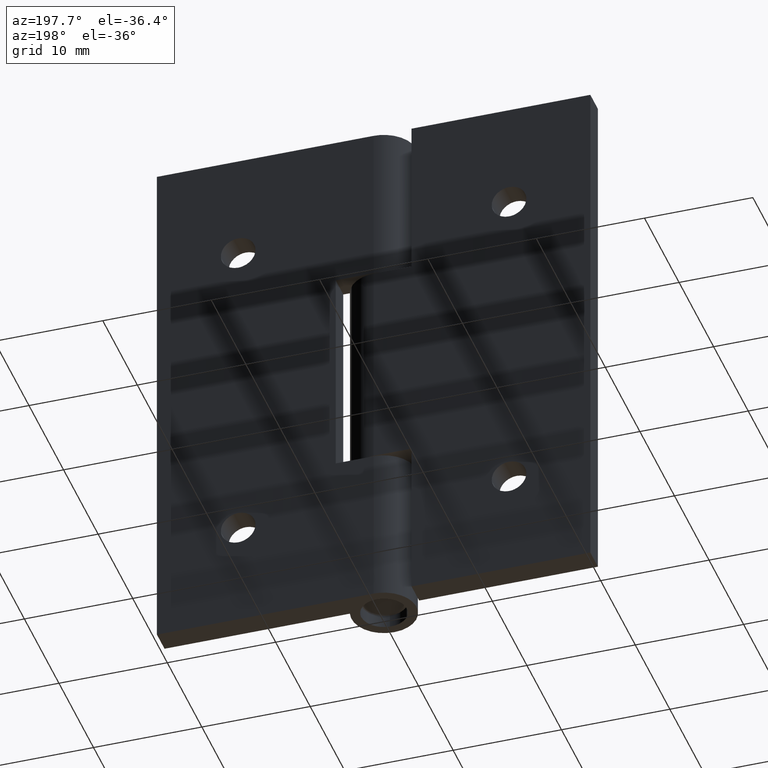
[diagram: clean part render]
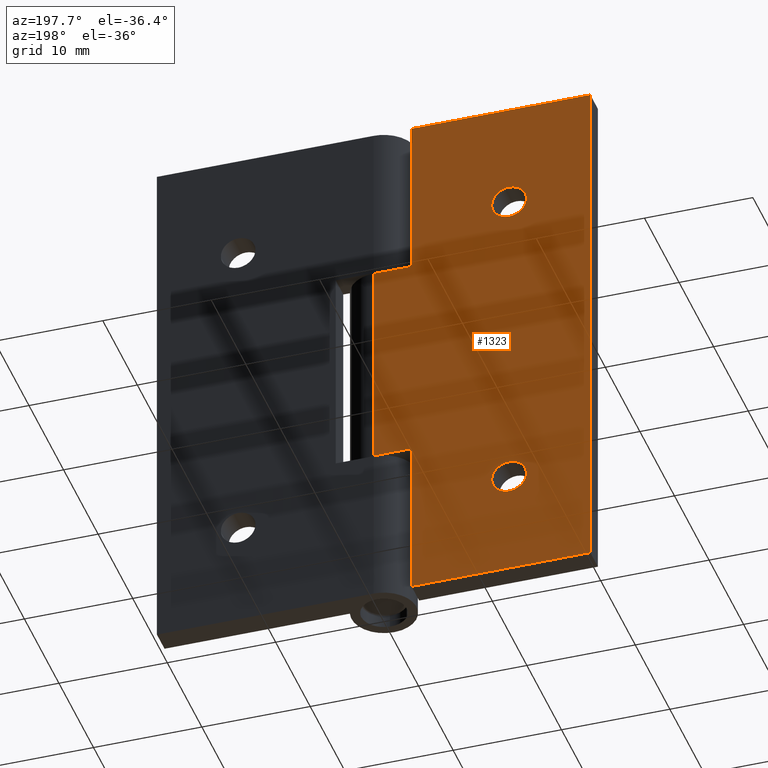
[diagram: same view with one face highlighted and labeled with its STEP entity id]
A machine part, auxiliary view. The second image highlights one B-rep face of the part: STEP entity #1323.
In plain terms, the highlighted face is a freeform B-spline surface patch.
Its self-contained STEP definition (entity closure, byte-faithful):
#658=CARTESIAN_POINT('',(-14.095067733957350,3.0,40.125534553363543));
#659=VERTEX_POINT('',#658);
#665=CARTESIAN_POINT('',(-12.500000000000000,3.0,41.600000000000001));
#666=VERTEX_POINT('',#665);
#667=CARTESIAN_POINT('',(-12.500000000000000,3.0,41.600000000000001));
#668=CARTESIAN_POINT('',(-13.979024786282977,2.999999999999999,41.600000000000009));
#669=CARTESIAN_POINT('',(-14.095067733957347,3.000000000000000,40.125534553363536));
#677=(BOUNDED_CURVE()B_SPLINE_CURVE(2,(#667,#668,#669),.UNSPECIFIED.,.F.,.U.)B_SPLINE_CURVE_WITH_KNOTS((3,3),(0.0,0.236331300589997),.UNSPECIFIED.)CURVE()GEOMETRIC_REPRESENTATION_ITEM()RATIONAL_B_SPLINE_CURVE((1.0,0.723120658655304,0.969723356082559))REPRESENTATION_ITEM(''));
#678=EDGE_CURVE('',#666,#659,#677,.T.);
#680=CARTESIAN_POINT('',(-10.904932266042660,3.0,39.874465446636457));
#681=VERTEX_POINT('',#680);
#682=CARTESIAN_POINT('',(-10.904932266042659,3.000000000000000,39.874465446636457));
#683=CARTESIAN_POINT('',(-10.899999999999997,3.000000000000000,39.937135828587827));
#684=CARTESIAN_POINT('',(-10.900000000000000,3.0,40.0));
#685=CARTESIAN_POINT('',(-10.900000000000000,3.0,41.600000000000001));
#686=CARTESIAN_POINT('',(-12.500000000000000,3.0,41.600000000000001));
#694=(BOUNDED_CURVE()B_SPLINE_CURVE(2,(#682,#683,#684,#685,#686),.UNSPECIFIED.,.F.,.U.)B_SPLINE_CURVE_WITH_KNOTS((3,2,3),(0.736331300589998,0.750000000000000,1.0),.UNSPECIFIED.)CURVE()GEOMETRIC_REPRESENTATION_ITEM()RATIONAL_B_SPLINE_CURVE((0.969723356082561,0.983986122531244,1.0,0.707106781186548,1.0))REPRESENTATION_ITEM(''));
#695=EDGE_CURVE('',#681,#666,#694,.T.);
#771=CARTESIAN_POINT('',(-12.500000000000000,3.0,38.400000000000013));
#772=VERTEX_POINT('',#771);
#773=CARTESIAN_POINT('',(-12.500000000000000,3.0,38.400000000000013));
#774=CARTESIAN_POINT('',(-11.020975213717012,3.000000000000000,38.400000000000006));
#775=CARTESIAN_POINT('',(-10.904932266042653,3.000000000000000,39.874465446636464));
#783=(BOUNDED_CURVE()B_SPLINE_CURVE(2,(#773,#774,#775),.UNSPECIFIED.,.F.,.U.)B_SPLINE_CURVE_WITH_KNOTS((3,3),(0.500000000000000,0.736331300589998),.UNSPECIFIED.)CURVE()GEOMETRIC_REPRESENTATION_ITEM()RATIONAL_B_SPLINE_CURVE((1.0,0.723120658655304,0.969723356082560))REPRESENTATION_ITEM(''));
#784=EDGE_CURVE('',#772,#681,#783,.T.);
#786=CARTESIAN_POINT('',(-14.095067733957347,3.000000000000000,40.125534553363536));
#787=CARTESIAN_POINT('',(-14.099999999999998,3.000000000000000,40.062864171412173));
#788=CARTESIAN_POINT('',(-14.100000000000000,3.0,40.0));
#789=CARTESIAN_POINT('',(-14.100000000000001,3.0,38.400000000000006));
#790=CARTESIAN_POINT('',(-12.500000000000000,3.0,38.400000000000013));
#798=(BOUNDED_CURVE()B_SPLINE_CURVE(2,(#786,#787,#788,#789,#790),.UNSPECIFIED.,.F.,.U.)B_SPLINE_CURVE_WITH_KNOTS((3,2,3),(0.236331300589998,0.250000000000000,0.500000000000000),.UNSPECIFIED.)CURVE()GEOMETRIC_REPRESENTATION_ITEM()RATIONAL_B_SPLINE_CURVE((0.969723356082559,0.983986122531243,1.0,0.707106781186548,1.0))REPRESENTATION_ITEM(''));
#799=EDGE_CURVE('',#659,#772,#798,.T.);
#840=CARTESIAN_POINT('',(-14.095067733957350,3.0,10.125534553363529));
#841=VERTEX_POINT('',#840);
#847=CARTESIAN_POINT('',(-12.500000000000000,3.0,11.600000000000000));
#848=VERTEX_POINT('',#847);
#849=CARTESIAN_POINT('',(-12.500000000000000,3.0,11.600000000000000));
#850=CARTESIAN_POINT('',(-13.979024786282990,3.000000000000001,11.600000000000000));
#851=CARTESIAN_POINT('',(-14.095067733957347,3.000000000000000,10.125534553363529));
#859=(BOUNDED_CURVE()B_SPLINE_CURVE(2,(#849,#850,#851),.UNSPECIFIED.,.F.,.U.)B_SPLINE_CURVE_WITH_KNOTS((3,3),(0.0,0.236331300589998),.UNSPECIFIED.)CURVE()GEOMETRIC_REPRESENTATION_ITEM()RATIONAL_B_SPLINE_CURVE((1.0,0.723120658655304,0.969723356082560))REPRESENTATION_ITEM(''));
#860=EDGE_CURVE('',#848,#841,#859,.T.);
#862=CARTESIAN_POINT('',(-10.904932266042660,3.0,9.874465446636471));
#863=VERTEX_POINT('',#862);
#864=CARTESIAN_POINT('',(-10.904932266042660,3.000000000000000,9.874465446636471));
#865=CARTESIAN_POINT('',(-10.899999999999999,3.0,9.937135828587829));
#866=CARTESIAN_POINT('',(-10.900000000000000,3.0,10.0));
#867=CARTESIAN_POINT('',(-10.900000000000000,3.0,11.600000000000001));
#868=CARTESIAN_POINT('',(-12.500000000000000,3.0,11.600000000000000));
#876=(BOUNDED_CURVE()B_SPLINE_CURVE(2,(#864,#865,#866,#867,#868),.UNSPECIFIED.,.F.,.U.)B_SPLINE_CURVE_WITH_KNOTS((3,2,3),(0.736331300589998,0.750000000000000,1.0),.UNSPECIFIED.)CURVE()GEOMETRIC_REPRESENTATION_ITEM()RATIONAL_B_SPLINE_CURVE((0.969723356082560,0.983986122531244,1.0,0.707106781186548,1.0))REPRESENTATION_ITEM(''));
#877=EDGE_CURVE('',#863,#848,#876,.T.);
#953=CARTESIAN_POINT('',(-12.500000000000000,3.0,8.400000000000000));
#954=VERTEX_POINT('',#953);
#955=CARTESIAN_POINT('',(-12.500000000000000,3.0,8.400000000000000));
#956=CARTESIAN_POINT('',(-11.020975213717012,3.000000000000000,8.400000000000000));
#957=CARTESIAN_POINT('',(-10.904932266042653,3.000000000000000,9.874465446636471));
#965=(BOUNDED_CURVE()B_SPLINE_CURVE(2,(#955,#956,#957),.UNSPECIFIED.,.F.,.U.)B_SPLINE_CURVE_WITH_KNOTS((3,3),(0.500000000000000,0.736331300589998),.UNSPECIFIED.)CURVE()GEOMETRIC_REPRESENTATION_ITEM()RATIONAL_B_SPLINE_CURVE((1.0,0.723120658655304,0.969723356082560))REPRESENTATION_ITEM(''));
#966=EDGE_CURVE('',#954,#863,#965,.T.);
#968=CARTESIAN_POINT('',(-14.095067733957347,3.000000000000000,10.125534553363529));
#969=CARTESIAN_POINT('',(-14.099999999999998,3.000000000000000,10.062864171412173));
#970=CARTESIAN_POINT('',(-14.100000000000000,3.0,10.0));
#971=CARTESIAN_POINT('',(-14.100000000000001,3.0,8.400000000000000));
#972=CARTESIAN_POINT('',(-12.500000000000000,3.0,8.400000000000000));
#980=(BOUNDED_CURVE()B_SPLINE_CURVE(2,(#968,#969,#970,#971,#972),.UNSPECIFIED.,.F.,.U.)B_SPLINE_CURVE_WITH_KNOTS((3,2,3),(0.236331300589998,0.250000000000000,0.500000000000000),.UNSPECIFIED.)CURVE()GEOMETRIC_REPRESENTATION_ITEM()RATIONAL_B_SPLINE_CURVE((0.969723356082560,0.983986122531244,1.0,0.707106781186548,1.0))REPRESENTATION_ITEM(''));
#981=EDGE_CURVE('',#841,#954,#980,.T.);
#994=CARTESIAN_POINT('',(-3.500000000000000,3.0,0.0));
#995=VERTEX_POINT('',#994);
#1001=CARTESIAN_POINT('',(-3.500000000000000,3.0,15.050000000000001));
#1002=VERTEX_POINT('',#1001);
#1003=CARTESIAN_POINT('',(-3.500000000000000,3.0,15.050000000000001));
#1004=CARTESIAN_POINT('',(-3.500000000000000,3.0,0.0));
#1005=QUASI_UNIFORM_CURVE('',1,(#1003,#1004),.UNSPECIFIED.,.F.,.U.);
#1006=EDGE_CURVE('',#1002,#995,#1005,.T.);
#1029=CARTESIAN_POINT('',(0.0,3.0,15.050000000000001));
#1030=VERTEX_POINT('',#1029);
#1031=CARTESIAN_POINT('',(0.0,3.0,15.050000000000001));
#1032=CARTESIAN_POINT('',(-3.500000000000000,3.0,15.050000000000001));
#1033=QUASI_UNIFORM_CURVE('',1,(#1031,#1032),.UNSPECIFIED.,.F.,.U.);
#1034=EDGE_CURVE('',#1030,#1002,#1033,.T.);
#1078=CARTESIAN_POINT('',(-3.500000000000000,3.0,34.950000000000003));
#1079=VERTEX_POINT('',#1078);
#1085=CARTESIAN_POINT('',(-3.500000000000000,3.0,50.0));
#1086=VERTEX_POINT('',#1085);
#1087=CARTESIAN_POINT('',(-3.500000000000000,3.0,34.950000000000003));
#1088=CARTESIAN_POINT('',(-3.500000000000000,3.0,50.0));
#1089=QUASI_UNIFORM_CURVE('',1,(#1087,#1088),.UNSPECIFIED.,.F.,.U.);
#1090=EDGE_CURVE('',#1079,#1086,#1089,.T.);
#1114=CARTESIAN_POINT('',(0.0,3.0,34.950000000000003));
#1115=VERTEX_POINT('',#1114);
#1135=CARTESIAN_POINT('',(0.0,3.0,34.950000000000003));
#1136=CARTESIAN_POINT('',(-3.500000000000000,3.0,34.950000000000003));
#1137=QUASI_UNIFORM_CURVE('',1,(#1135,#1136),.UNSPECIFIED.,.F.,.U.);
#1138=EDGE_CURVE('',#1115,#1079,#1137,.T.);
#1168=CARTESIAN_POINT('',(-20.0,3.0,0.0));
#1169=VERTEX_POINT('',#1168);
#1175=CARTESIAN_POINT('',(-3.500000000000000,3.0,0.0));
#1176=CARTESIAN_POINT('',(-20.0,3.0,0.0));
#1177=QUASI_UNIFORM_CURVE('',1,(#1175,#1176),.UNSPECIFIED.,.F.,.U.);
#1178=EDGE_CURVE('',#995,#1169,#1177,.T.);
#1196=CARTESIAN_POINT('',(-20.0,3.0,50.0));
#1197=VERTEX_POINT('',#1196);
#1198=CARTESIAN_POINT('',(-3.500000000000000,3.0,50.0));
#1199=CARTESIAN_POINT('',(-20.0,3.0,50.0));
#1200=QUASI_UNIFORM_CURVE('',1,(#1198,#1199),.UNSPECIFIED.,.F.,.U.);
#1201=EDGE_CURVE('',#1086,#1197,#1200,.T.);
#1239=CARTESIAN_POINT('',(0.0,3.0,34.950000000000003));
#1240=CARTESIAN_POINT('',(0.0,3.0,15.050000000000001));
#1241=QUASI_UNIFORM_CURVE('',1,(#1239,#1240),.UNSPECIFIED.,.F.,.U.);
#1242=EDGE_CURVE('',#1115,#1030,#1241,.T.);
#1260=CARTESIAN_POINT('',(-20.0,3.0,50.0));
#1261=CARTESIAN_POINT('',(-20.0,3.0,0.0));
#1262=QUASI_UNIFORM_CURVE('',1,(#1260,#1261),.UNSPECIFIED.,.F.,.U.);
#1263=EDGE_CURVE('',#1197,#1169,#1262,.T.);
#1296=CARTESIAN_POINT('',(-20.998999961236120,3.0,52.497499903090286));
#1297=CARTESIAN_POINT('',(-20.998999961236120,3.0,-2.497501244194806));
#1298=CARTESIAN_POINT('',(0.999000497677922,3.0,52.497499903090301));
#1299=CARTESIAN_POINT('',(0.999000497677922,3.0,-2.497501244194806));
#1300=B_SPLINE_SURFACE_WITH_KNOTS('',1,1,((#1296,#1298),(#1297,#1299)),.UNSPECIFIED.,.F.,.F.,.U.,(2,2),(2,2),(0.0,54.995001147285109),(0.0,21.998000458914039),.UNSPECIFIED.);
#1301=ORIENTED_EDGE('',*,*,#1242,.T.);
#1302=ORIENTED_EDGE('',*,*,#1034,.T.);
#1303=ORIENTED_EDGE('',*,*,#1006,.T.);
#1304=ORIENTED_EDGE('',*,*,#1178,.T.);
#1305=ORIENTED_EDGE('',*,*,#1263,.F.);
#1306=ORIENTED_EDGE('',*,*,#1201,.F.);
#1307=ORIENTED_EDGE('',*,*,#1090,.F.);
#1308=ORIENTED_EDGE('',*,*,#1138,.F.);
#1309=EDGE_LOOP('',(#1301,#1302,#1303,#1304,#1305,#1306,#1307,#1308));
#1310=FACE_OUTER_BOUND('',#1309,.T.);
#1311=ORIENTED_EDGE('',*,*,#966,.T.);
#1312=ORIENTED_EDGE('',*,*,#877,.T.);
#1313=ORIENTED_EDGE('',*,*,#860,.T.);
#1314=ORIENTED_EDGE('',*,*,#981,.T.);
#1315=EDGE_LOOP('',(#1311,#1312,#1313,#1314));
#1316=FACE_BOUND('',#1315,.T.);
#1317=ORIENTED_EDGE('',*,*,#784,.T.);
#1318=ORIENTED_EDGE('',*,*,#695,.T.);
#1319=ORIENTED_EDGE('',*,*,#678,.T.);
#1320=ORIENTED_EDGE('',*,*,#799,.T.);
#1321=EDGE_LOOP('',(#1317,#1318,#1319,#1320));
#1322=FACE_BOUND('',#1321,.T.);
#1323=ADVANCED_FACE('',(#1310,#1316,#1322),#1300,.F.);